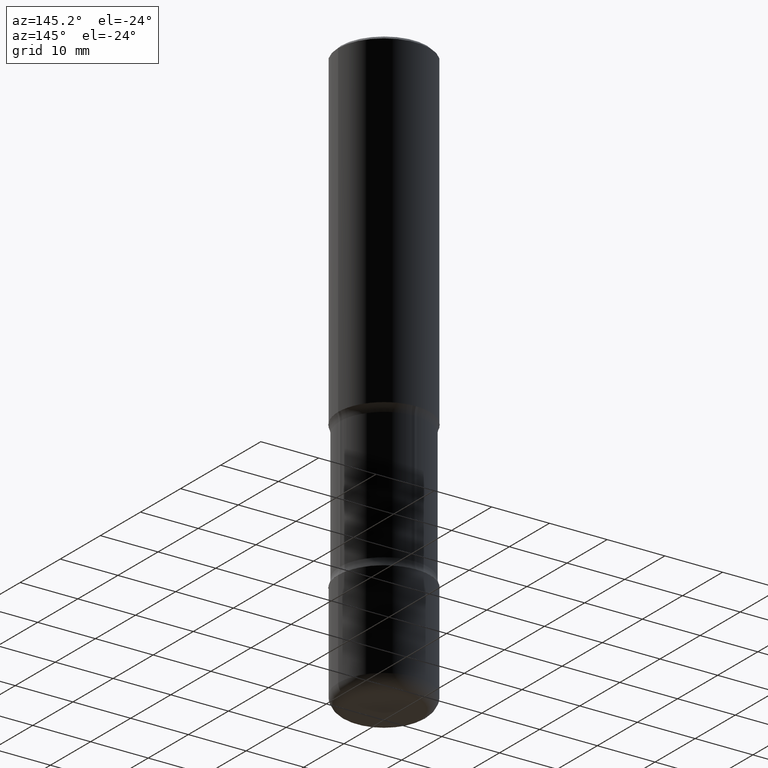
[diagram: clean part render]
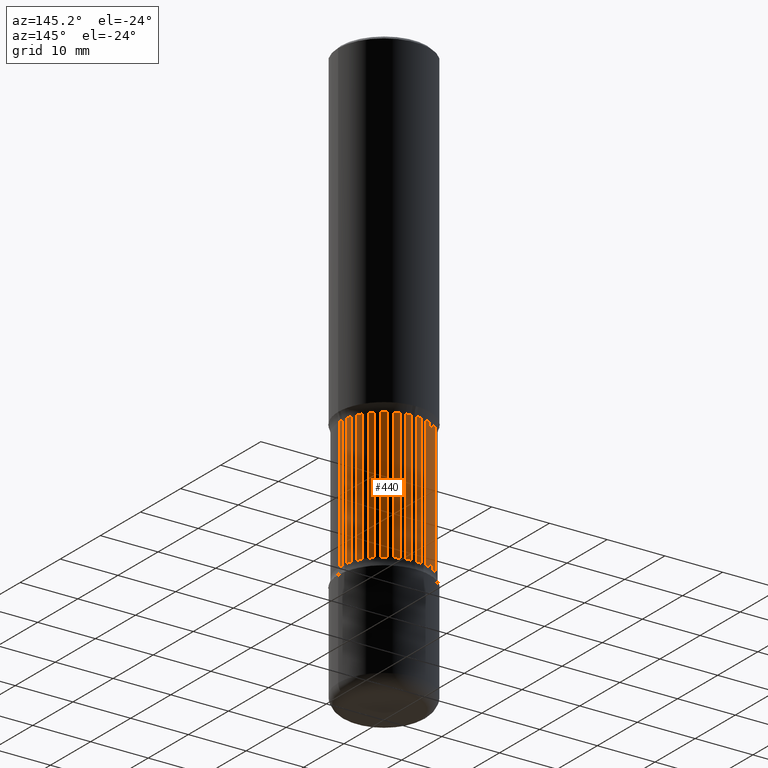
[diagram: same view with one face highlighted and labeled with its STEP entity id]
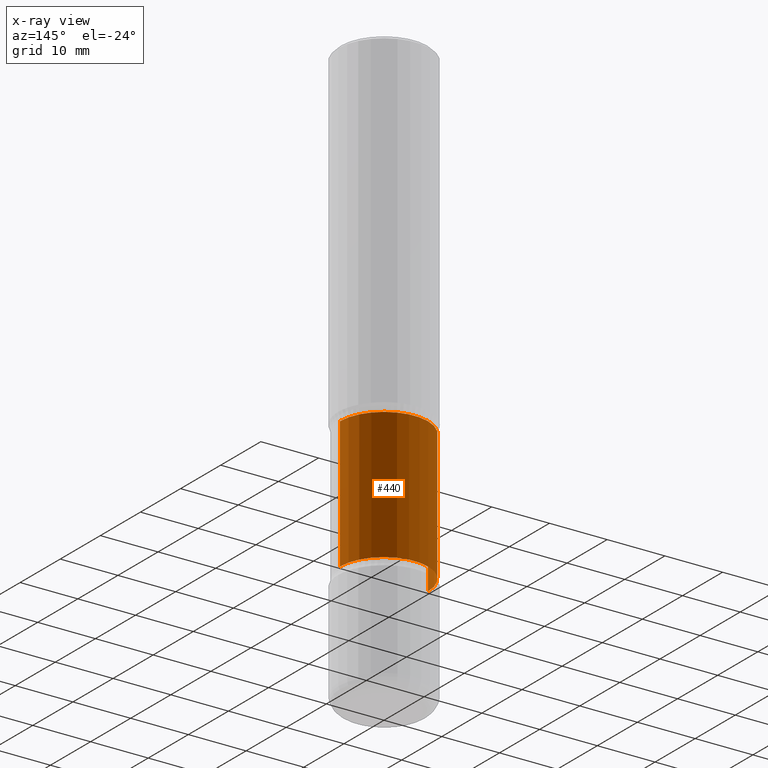
[diagram: x-ray of the same camera — body ghosted, the highlighted face saturated]
A machine part, auxiliary view. The second image highlights one B-rep face of the part: STEP entity #440.
The next image is the same camera in x-ray: the body ghosted, the highlighted face saturated — about 0% of this face is hidden behind the body in this view.
In plain terms, the highlighted cylindrical surface (partial cylindrical patch) has radius 7.62 mm, axis along (-0, 0, 1).
Its self-contained STEP definition (entity closure, byte-faithful):
#3 = DIRECTION ( 'NONE',  ( -2.445468806185136597E-29, 3.491481338843145583E-15, 1.000000000000000000 ) ) ;
#27 = FACE_OUTER_BOUND ( 'NONE', #353, .T. ) ;
#35 = CIRCLE ( 'NONE', #142, 0.2999999999999996003 ) ;
#52 = DIRECTION ( 'NONE',  ( -2.445468806185136877E-29, 3.491481338843145188E-15, 1.000000000000000000 ) ) ;
#68 = LINE ( 'NONE', #806, #217 ) ;
#73 = CARTESIAN_POINT ( 'NONE',  ( -0.2999999999999996003, -5.774914723627244502E-15, -2.304486236794259568 ) ) ;
#123 = VERTEX_POINT ( 'NONE', #608 ) ;
#142 = AXIS2_PLACEMENT_3D ( 'NONE', #252, #744, #567 ) ;
#148 = CARTESIAN_POINT ( 'NONE',  ( 0.2999999999999996558, -9.950721815702955306E-15, -2.250000000000000000 ) ) ;
#153 = DIRECTION ( 'NONE',  ( -2.445468806185136877E-29, 3.491481338843145188E-15, 1.000000000000000000 ) ) ;
#184 = ORIENTED_EDGE ( 'NONE', *, *, #724, .F. ) ;
#186 = DIRECTION ( 'NONE',  ( 1.000000000000000000, -6.982962677686266711E-15, 0.000000000000000000 ) ) ;
#211 = CYLINDRICAL_SURFACE ( 'NONE', #295, 0.2999999999999996558 ) ;
#217 = VECTOR ( 'NONE', #52, 39.37007874015748143 ) ;
#226 = VERTEX_POINT ( 'NONE', #73 ) ;
#230 = DIRECTION ( 'NONE',  ( 1.000000000000000000, -6.982962677686268288E-15, 0.000000000000000000 ) ) ;
#252 = CARTESIAN_POINT ( 'NONE',  ( 5.635549206363335813E-29, -8.046070691388022931E-15, -2.304486236794259568 ) ) ;
#282 = ORIENTED_EDGE ( 'NONE', *, *, #285, .T. ) ;
#285 = EDGE_CURVE ( 'NONE', #576, #805, #422, .T. ) ;
#295 = AXIS2_PLACEMENT_3D ( 'NONE', #319, #3, #186 ) ;
#319 = CARTESIAN_POINT ( 'NONE',  ( 5.502304813916557343E-29, -7.855833012397078448E-15, -2.250000000000000000 ) ) ;
#342 = CARTESIAN_POINT ( 'NONE',  ( -0.2999999999999997113, -9.076158383479444418E-15, -3.195513763205740432 ) ) ;
#348 = CARTESIAN_POINT ( 'NONE',  ( 7.814529227654916590E-29, -1.115707667224927836E-14, -3.195513763205740432 ) ) ;
#353 = EDGE_LOOP ( 'NONE', ( #282, #753, #632, #184 ) ) ;
#422 = CIRCLE ( 'NONE', #516, 0.2999999999999997113 ) ;
#440 = ADVANCED_FACE ( 'NONE', ( #27 ), #211, .T. ) ;
#504 = VECTOR ( 'NONE', #153, 39.37007874015748143 ) ;
#515 = LINE ( 'NONE', #148, #504 ) ;
#516 = AXIS2_PLACEMENT_3D ( 'NONE', #348, #785, #230 ) ;
#521 = EDGE_CURVE ( 'NONE', #805, #226, #68, .T. ) ;
#536 = EDGE_CURVE ( 'NONE', #123, #226, #35, .T. ) ;
#552 = CARTESIAN_POINT ( 'NONE',  ( 0.2999999999999997113, -1.325196547555515680E-14, -3.195513763205740432 ) ) ;
#567 = DIRECTION ( 'NONE',  ( 1.000000000000000000, -6.982962677686268288E-15, 0.000000000000000000 ) ) ;
#576 = VERTEX_POINT ( 'NONE', #552 ) ;
#608 = CARTESIAN_POINT ( 'NONE',  ( 0.2999999999999996003, -1.014095949469390137E-14, -2.304486236794259568 ) ) ;
#632 = ORIENTED_EDGE ( 'NONE', *, *, #536, .F. ) ;
#724 = EDGE_CURVE ( 'NONE', #576, #123, #515, .T. ) ;
#744 = DIRECTION ( 'NONE',  ( -2.445468806185136597E-29, 3.491481338843145583E-15, 1.000000000000000000 ) ) ;
#753 = ORIENTED_EDGE ( 'NONE', *, *, #521, .T. ) ;
#785 = DIRECTION ( 'NONE',  ( -2.445468806185136597E-29, 3.491481338843145583E-15, 1.000000000000000000 ) ) ;
#805 = VERTEX_POINT ( 'NONE', #342 ) ;
#806 = CARTESIAN_POINT ( 'NONE',  ( -0.2999999999999996558, -5.724204805116779942E-15, -2.250000000000000000 ) ) ;